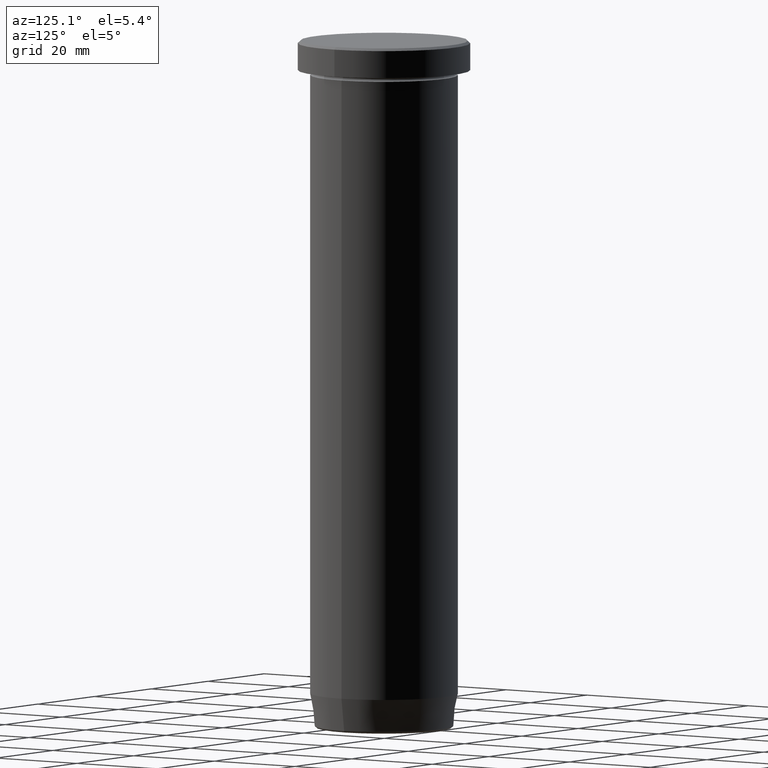
[diagram: clean part render]
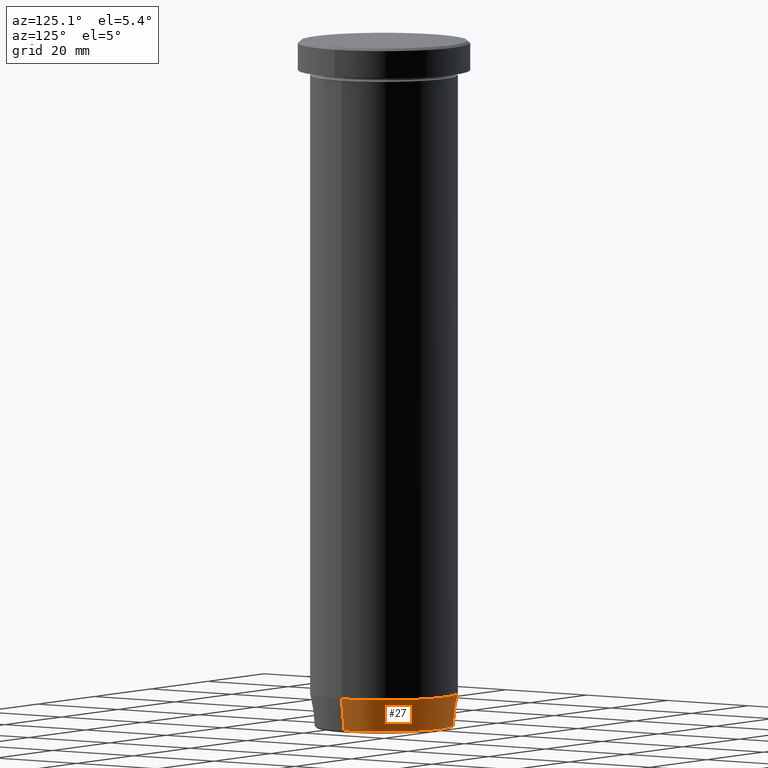
[diagram: same view with one face highlighted and labeled with its STEP entity id]
A machine part, auxiliary view. The second image highlights one B-rep face of the part: STEP entity #27.
In plain terms, the highlighted conical surface has half-angle 8 deg.
Its self-contained STEP definition (entity closure, byte-faithful):
#15 = VERTEX_POINT ( 'NONE', #442 ) ;
#24 = VERTEX_POINT ( 'NONE', #542 ) ;
#25 = CARTESIAN_POINT ( 'NONE',  ( 0.000000000000000000, 0.000000000000000000, -132.9999999999999716 ) ) ;
#27 = ADVANCED_FACE ( 'NONE', ( #580 ), #141, .T. ) ;
#60 = EDGE_CURVE ( 'NONE', #67, #15, #364, .T. ) ;
#62 = DIRECTION ( 'NONE',  ( 1.000000000000000000, 0.000000000000000000, 0.000000000000000000 ) ) ;
#67 = VERTEX_POINT ( 'NONE', #552 ) ;
#107 = DIRECTION ( 'NONE',  ( 0.1391731009600661317, 0.000000000000000000, 0.9902680687415702510 ) ) ;
#120 = DIRECTION ( 'NONE',  ( -0.000000000000000000, -0.000000000000000000, 1.000000000000000000 ) ) ;
#128 = AXIS2_PLACEMENT_3D ( 'NONE', #25, #120, #354 ) ;
#141 = CONICAL_SURFACE ( 'NONE', #486, 14.01621415708325280, 0.1396263401595470577 ) ;
#171 = ORIENTED_EDGE ( 'NONE', *, *, #550, .F. ) ;
#187 = CARTESIAN_POINT ( 'NONE',  ( -14.01621415708325280, 1.716491180363582438E-15, -139.9999999999999716 ) ) ;
#197 = DIRECTION ( 'NONE',  ( -0.000000000000000000, -0.000000000000000000, 1.000000000000000000 ) ) ;
#204 = DIRECTION ( 'NONE',  ( -1.000000000000000000, 0.000000000000000000, 0.000000000000000000 ) ) ;
#219 = CIRCLE ( 'NONE', #311, 14.07670482254592592 ) ;
#223 = ORIENTED_EDGE ( 'NONE', *, *, #60, .T. ) ;
#257 = DIRECTION ( 'NONE',  ( -0.000000000000000000, -0.000000000000000000, 1.000000000000000000 ) ) ;
#297 = CARTESIAN_POINT ( 'NONE',  ( 15.00000000000000000, 0.000000000000000000, -132.9999999999999716 ) ) ;
#300 = CIRCLE ( 'NONE', #128, 15.00000000000000000 ) ;
#311 = AXIS2_PLACEMENT_3D ( 'NONE', #440, #197, #204 ) ;
#328 = LINE ( 'NONE', #377, #588 ) ;
#333 = EDGE_CURVE ( 'NONE', #24, #67, #219, .T. ) ;
#347 = VECTOR ( 'NONE', #367, 1000.000000000000000 ) ;
#353 = EDGE_CURVE ( 'NONE', #24, #572, #328, .T. ) ;
#354 = DIRECTION ( 'NONE',  ( 1.000000000000000000, 0.000000000000000000, 0.000000000000000000 ) ) ;
#356 = EDGE_LOOP ( 'NONE', ( #569, #223, #171, #391 ) ) ;
#364 = LINE ( 'NONE', #187, #347 ) ;
#367 = DIRECTION ( 'NONE',  ( -0.1391731009600661317, 1.704378926181564302E-17, 0.9902680687415702510 ) ) ;
#377 = CARTESIAN_POINT ( 'NONE',  ( 14.01621415708325280, 0.000000000000000000, -139.9999999999999716 ) ) ;
#391 = ORIENTED_EDGE ( 'NONE', *, *, #353, .F. ) ;
#440 = CARTESIAN_POINT ( 'NONE',  ( 0.000000000000000000, 0.000000000000000000, -139.5695865504800111 ) ) ;
#442 = CARTESIAN_POINT ( 'NONE',  ( -15.00000000000000000, 1.836970198721029589E-15, -132.9999999999999716 ) ) ;
#486 = AXIS2_PLACEMENT_3D ( 'NONE', #532, #257, #62 ) ;
#532 = CARTESIAN_POINT ( 'NONE',  ( 0.000000000000000000, 0.000000000000000000, -139.9999999999999716 ) ) ;
#542 = CARTESIAN_POINT ( 'NONE',  ( 14.07670482254592592, 0.000000000000000000, -139.5695865504800111 ) ) ;
#550 = EDGE_CURVE ( 'NONE', #572, #15, #300, .T. ) ;
#552 = CARTESIAN_POINT ( 'NONE',  ( -14.07670482254592592, 1.780434674534163799E-15, -139.5695865504800111 ) ) ;
#569 = ORIENTED_EDGE ( 'NONE', *, *, #333, .T. ) ;
#572 = VERTEX_POINT ( 'NONE', #297 ) ;
#580 = FACE_OUTER_BOUND ( 'NONE', #356, .T. ) ;
#588 = VECTOR ( 'NONE', #107, 1000.000000000000000 ) ;